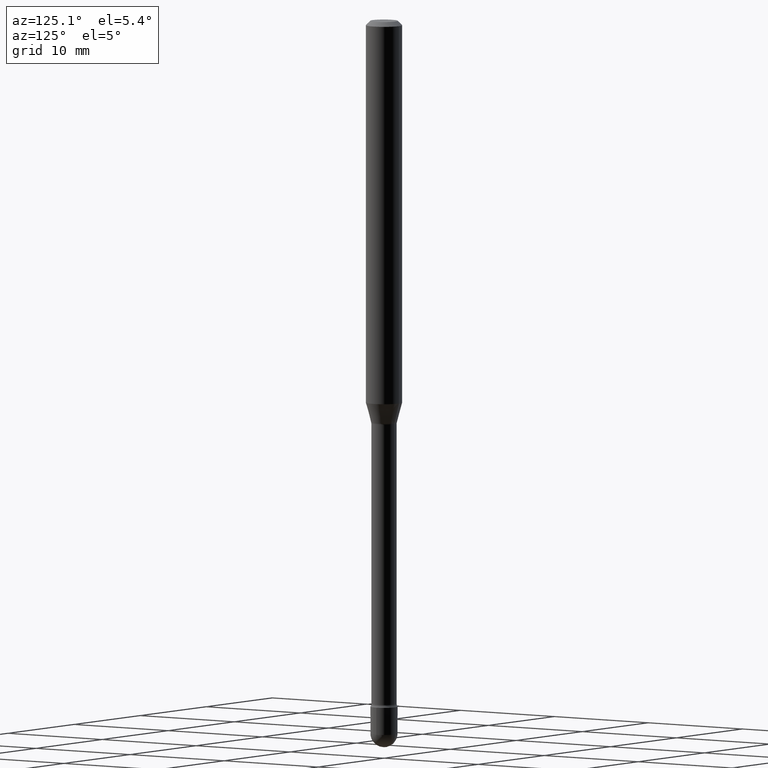
[diagram: clean part render]
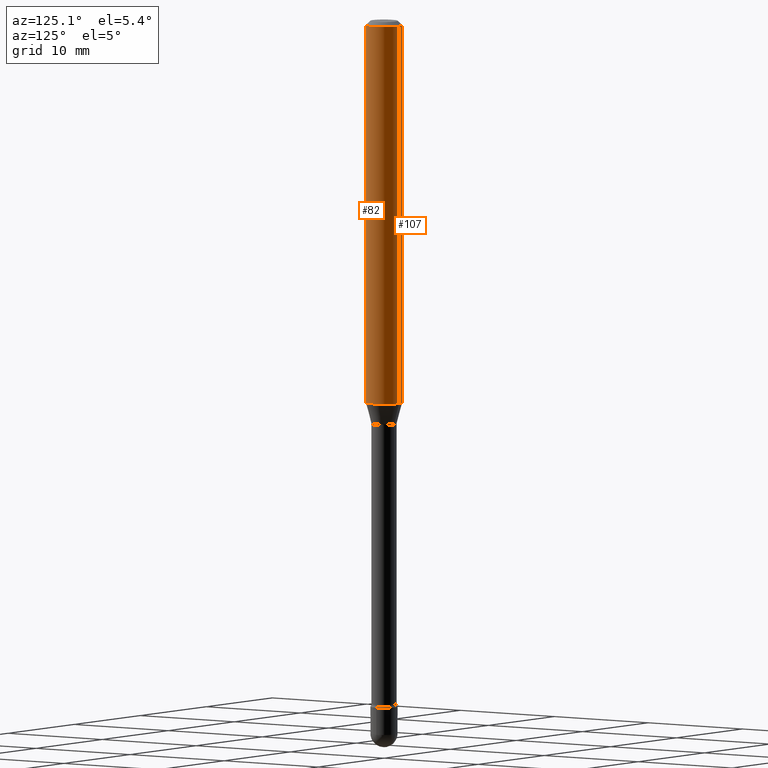
[diagram: same view with one multi-face feature highlighted, each face labeled with its STEP entity id]
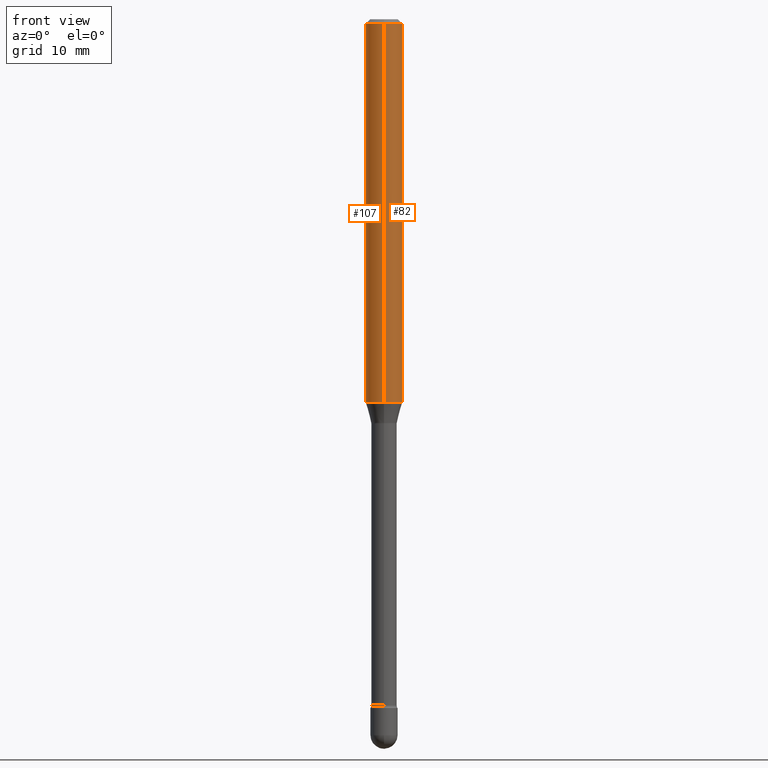
[diagram: same view with one multi-face feature highlighted, each face labeled with its STEP entity id]
A machine part, auxiliary view. The highlighted faces form ONE feature: a constant-radius fillet chain: 2 tangent blend faces with common blend radius 1.5875 mm. The faces share edges in the B-rep.
A second angle (front view) of the same feature is appended — it is thin or edge-on in the first view.
Their STEP definitions:
[1] entity #82 (Cylinder):
#3 = AXIS2_PLACEMENT_3D ( 'NONE', #499, #113, #283 ) ;
#12 = CARTESIAN_POINT ( 'NONE',  ( 4.440892098500949595E-16, 0.06249999999999995837, -0.01500000000000030129 ) ) ;
#32 = CARTESIAN_POINT ( 'NONE',  ( 4.440892098500625669E-16, 0.06250000000000000000, 2.598553390189778015E-16 ) ) ;
#42 = DIRECTION ( 'NONE',  ( -6.982962677686265922E-15, -1.000000000000000000, 3.483106191921935554E-15 ) ) ;
#59 = EDGE_CURVE ( 'NONE', #429, #565, #280, .T. ) ;
#82 = ADVANCED_FACE ( 'NONE', ( #199 ), #328, .T. ) ;
#101 = EDGE_CURVE ( 'NONE', #565, #545, #529, .T. ) ;
#103 = CARTESIAN_POINT ( 'NONE',  ( -4.364351673553912750E-16, -0.06250000000000005551, -0.01499999999999986587 ) ) ;
#113 = DIRECTION ( 'NONE',  ( -2.445463485786862347E-29, 3.491488957956292582E-15, 1.000000000000000000 ) ) ;
#124 = AXIS2_PLACEMENT_3D ( 'NONE', #149, #372, #42 ) ;
#133 = AXIS2_PLACEMENT_3D ( 'NONE', #382, #175, #219 ) ;
#149 = CARTESIAN_POINT ( 'NONE',  ( 3.668195228680313804E-31, -5.237233436934467444E-17, -0.01500000000000008271 ) ) ;
#175 = DIRECTION ( 'NONE',  ( -2.445463485786862347E-29, 3.491488957956292582E-15, 1.000000000000000000 ) ) ;
#199 = FACE_OUTER_BOUND ( 'NONE', #440, .T. ) ;
#219 = DIRECTION ( 'NONE',  ( -6.982962677686265922E-15, -1.000000000000000000, 4.370956789862821150E-15 ) ) ;
#226 = VERTEX_POINT ( 'NONE', #278 ) ;
#246 = CARTESIAN_POINT ( 'NONE',  ( -4.364351673553916201E-16, -0.06250000000000000000, 6.962914587635143249E-16 ) ) ;
#249 = VECTOR ( 'NONE', #339, 39.37007874015748143 ) ;
#257 = ORIENTED_EDGE ( 'NONE', *, *, #101, .F. ) ;
#258 = VECTOR ( 'NONE', #361, 39.37007874015748143 ) ;
#278 = CARTESIAN_POINT ( 'NONE',  ( 4.440892098500948609E-16, 0.06249999999999544115, -1.313837444817705702 ) ) ;
#280 = LINE ( 'NONE', #246, #249 ) ;
#283 = DIRECTION ( 'NONE',  ( -6.982962677686265922E-15, -1.000000000000000000, 3.491488957956291793E-15 ) ) ;
#302 = ORIENTED_EDGE ( 'NONE', *, *, #490, .T. ) ;
#328 = CYLINDRICAL_SURFACE ( 'NONE', #3, 0.06250000000000000000 ) ;
#339 = DIRECTION ( 'NONE',  ( -2.445463485786862627E-29, 3.491488957956292582E-15, 1.000000000000000000 ) ) ;
#361 = DIRECTION ( 'NONE',  ( -2.445463485786862627E-29, 3.491488957956292582E-15, 1.000000000000000000 ) ) ;
#372 = DIRECTION ( 'NONE',  ( -2.445463485786862347E-29, 3.491488957956292582E-15, 1.000000000000000000 ) ) ;
#379 = ORIENTED_EDGE ( 'NONE', *, *, #474, .T. ) ;
#382 = CARTESIAN_POINT ( 'NONE',  ( 3.212941497561210281E-29, -4.587248931130526757E-15, -1.313837444817705258 ) ) ;
#404 = CARTESIAN_POINT ( 'NONE',  ( -4.364351673553592768E-16, -0.06250000000000455191, -1.313837444817705036 ) ) ;
#422 = LINE ( 'NONE', #32, #258 ) ;
#429 = VERTEX_POINT ( 'NONE', #404 ) ;
#440 = EDGE_LOOP ( 'NONE', ( #302, #379, #257, #489 ) ) ;
#474 = EDGE_CURVE ( 'NONE', #226, #545, #422, .T. ) ;
#489 = ORIENTED_EDGE ( 'NONE', *, *, #59, .F. ) ;
#490 = EDGE_CURVE ( 'NONE', #429, #226, #556, .T. ) ;
#499 = CARTESIAN_POINT ( 'NONE',  ( -1.169113584055446105E-44, 1.669184350826100908E-30, 4.780733988912460139E-16 ) ) ;
#529 = CIRCLE ( 'NONE', #124, 0.06250000000000000000 ) ;
#545 = VERTEX_POINT ( 'NONE', #12 ) ;
#556 = CIRCLE ( 'NONE', #133, 0.06250000000000000000 ) ;
#565 = VERTEX_POINT ( 'NONE', #103 ) ;
[2] entity #107 (Cylinder):
#12 = CARTESIAN_POINT ( 'NONE',  ( 4.440892098500949595E-16, 0.06249999999999995837, -0.01500000000000030129 ) ) ;
#32 = CARTESIAN_POINT ( 'NONE',  ( 4.440892098500625669E-16, 0.06250000000000000000, 2.598553390189778015E-16 ) ) ;
#50 = CIRCLE ( 'NONE', #168, 0.06250000000000000000 ) ;
#53 = EDGE_LOOP ( 'NONE', ( #273, #254, #87, #510 ) ) ;
#59 = EDGE_CURVE ( 'NONE', #429, #565, #280, .T. ) ;
#62 = AXIS2_PLACEMENT_3D ( 'NONE', #282, #325, #115 ) ;
#75 = CARTESIAN_POINT ( 'NONE',  ( 3.212941497561210281E-29, -4.587248931130526757E-15, -1.313837444817705258 ) ) ;
#87 = ORIENTED_EDGE ( 'NONE', *, *, #59, .T. ) ;
#103 = CARTESIAN_POINT ( 'NONE',  ( -4.364351673553912750E-16, -0.06250000000000005551, -0.01499999999999986587 ) ) ;
#107 = ADVANCED_FACE ( 'NONE', ( #397 ), #136, .T. ) ;
#115 = DIRECTION ( 'NONE',  ( -6.982962677686265922E-15, -1.000000000000000000, 3.483106191921935554E-15 ) ) ;
#120 = EDGE_CURVE ( 'NONE', #226, #429, #50, .T. ) ;
#128 = EDGE_CURVE ( 'NONE', #545, #565, #304, .T. ) ;
#136 = CYLINDRICAL_SURFACE ( 'NONE', #441, 0.06250000000000000000 ) ;
#168 = AXIS2_PLACEMENT_3D ( 'NONE', #75, #318, #413 ) ;
#226 = VERTEX_POINT ( 'NONE', #278 ) ;
#228 = CARTESIAN_POINT ( 'NONE',  ( -1.169113584055446105E-44, 1.669184350826100908E-30, 4.780733988912460139E-16 ) ) ;
#246 = CARTESIAN_POINT ( 'NONE',  ( -4.364351673553916201E-16, -0.06250000000000000000, 6.962914587635143249E-16 ) ) ;
#249 = VECTOR ( 'NONE', #339, 39.37007874015748143 ) ;
#254 = ORIENTED_EDGE ( 'NONE', *, *, #120, .T. ) ;
#258 = VECTOR ( 'NONE', #361, 39.37007874015748143 ) ;
#273 = ORIENTED_EDGE ( 'NONE', *, *, #474, .F. ) ;
#278 = CARTESIAN_POINT ( 'NONE',  ( 4.440892098500948609E-16, 0.06249999999999544115, -1.313837444817705702 ) ) ;
#280 = LINE ( 'NONE', #246, #249 ) ;
#282 = CARTESIAN_POINT ( 'NONE',  ( 3.668195228680313804E-31, -5.237233436934467444E-17, -0.01500000000000008271 ) ) ;
#304 = CIRCLE ( 'NONE', #62, 0.06250000000000000000 ) ;
#308 = DIRECTION ( 'NONE',  ( -2.445463485786862347E-29, 3.491488957956292582E-15, 1.000000000000000000 ) ) ;
#318 = DIRECTION ( 'NONE',  ( -2.445463485786862347E-29, 3.491488957956292582E-15, 1.000000000000000000 ) ) ;
#325 = DIRECTION ( 'NONE',  ( -2.445463485786862347E-29, 3.491488957956292582E-15, 1.000000000000000000 ) ) ;
#339 = DIRECTION ( 'NONE',  ( -2.445463485786862627E-29, 3.491488957956292582E-15, 1.000000000000000000 ) ) ;
#361 = DIRECTION ( 'NONE',  ( -2.445463485786862627E-29, 3.491488957956292582E-15, 1.000000000000000000 ) ) ;
#397 = FACE_OUTER_BOUND ( 'NONE', #53, .T. ) ;
#404 = CARTESIAN_POINT ( 'NONE',  ( -4.364351673553592768E-16, -0.06250000000000455191, -1.313837444817705036 ) ) ;
#413 = DIRECTION ( 'NONE',  ( -6.982962677686265922E-15, -1.000000000000000000, 4.370956789862821150E-15 ) ) ;
#422 = LINE ( 'NONE', #32, #258 ) ;
#429 = VERTEX_POINT ( 'NONE', #404 ) ;
#441 = AXIS2_PLACEMENT_3D ( 'NONE', #228, #308, #479 ) ;
#474 = EDGE_CURVE ( 'NONE', #226, #545, #422, .T. ) ;
#479 = DIRECTION ( 'NONE',  ( -6.982962677686265922E-15, -1.000000000000000000, 3.491488957956291793E-15 ) ) ;
#510 = ORIENTED_EDGE ( 'NONE', *, *, #128, .F. ) ;
#545 = VERTEX_POINT ( 'NONE', #12 ) ;
#565 = VERTEX_POINT ( 'NONE', #103 ) ;